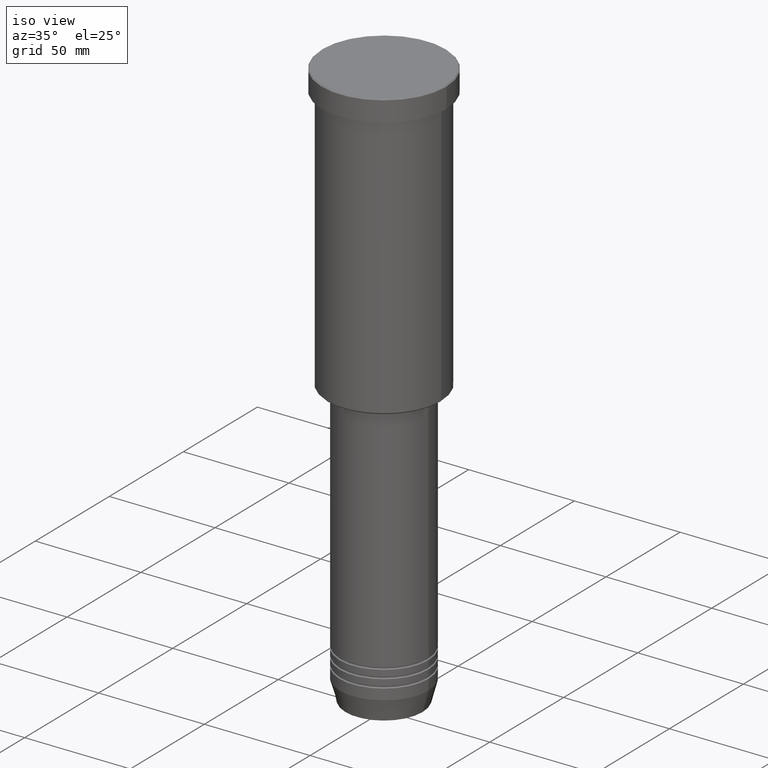
[diagram: clean part render]
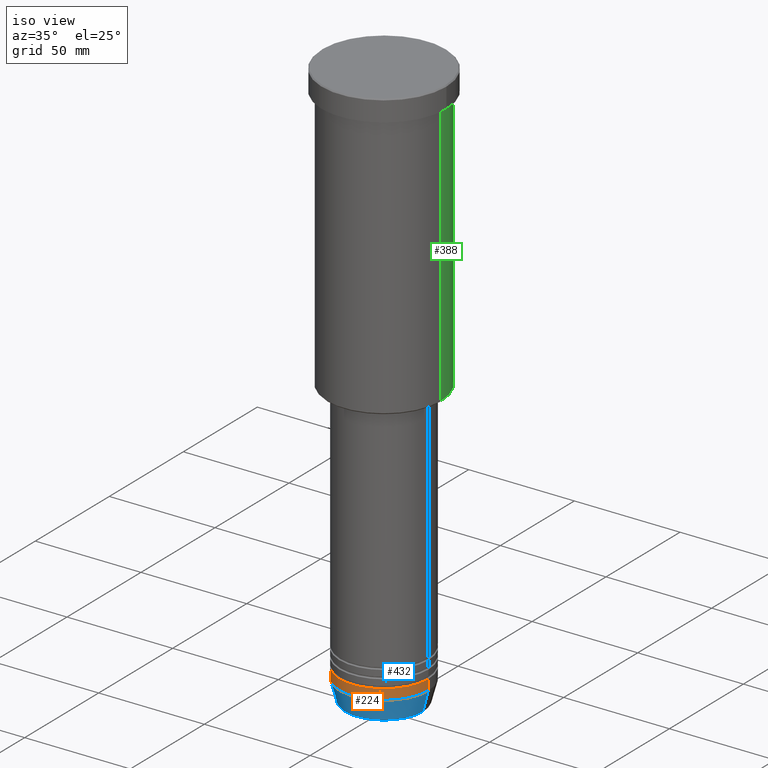
[diagram: same view with three faces highlighted in distinct colors, each labeled with its STEP entity id]
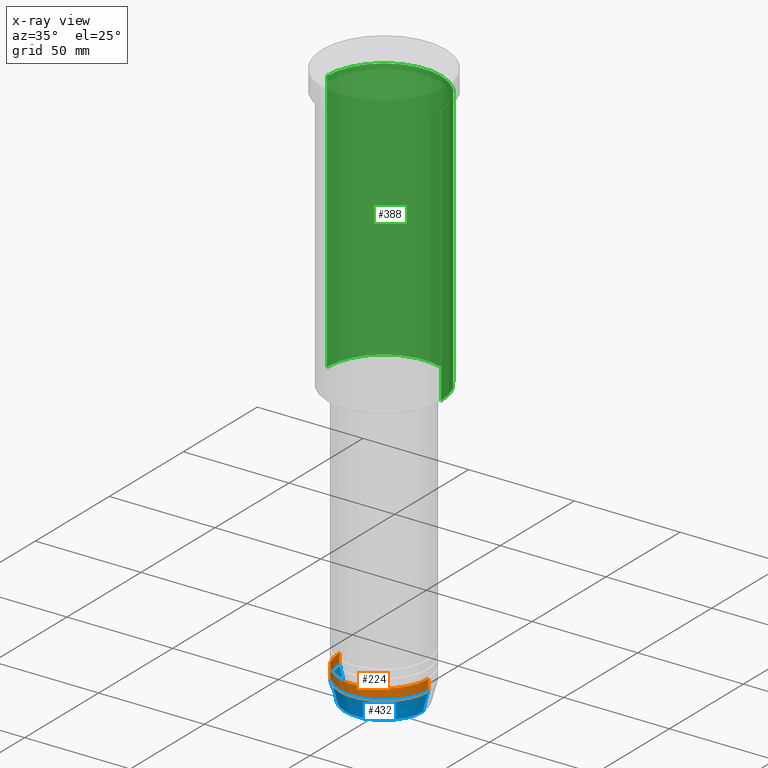
[diagram: x-ray of the same camera — body ghosted, the three highlighted faces saturated]
A machine part, iso view with three faces highlighted in distinct colors.
The next image is the same camera in x-ray (body ghosted, the three faces saturated) — at least one of them is partly hidden behind the body in this view.
Their STEP definitions:

[orange] entity #224 — the highlighted cylindrical surface (partial cylindrical patch) has radius 21 mm, axis along (-0, -0, 1).
#27 = VECTOR ( 'NONE', #535, 1000.000000000000000 ) ;
#34 = ORIENTED_EDGE ( 'NONE', *, *, #639, .T. ) ;
#72 = CYLINDRICAL_SURFACE ( 'NONE', #1182, 21.00000000000000000 ) ;
#73 = ORIENTED_EDGE ( 'NONE', *, *, #771, .T. ) ;
#89 = LINE ( 'NONE', #908, #334 ) ;
#120 = ORIENTED_EDGE ( 'NONE', *, *, #989, .F. ) ;
#148 = ORIENTED_EDGE ( 'NONE', *, *, #701, .F. ) ;
#154 = DIRECTION ( 'NONE',  ( -0.000000000000000000, -0.000000000000000000, 1.000000000000000000 ) ) ;
#199 = CIRCLE ( 'NONE', #1018, 21.00000000000000000 ) ;
#224 = ADVANCED_FACE ( 'NONE', ( #262 ), #72, .T. ) ;
#252 = DIRECTION ( 'NONE',  ( -0.000000000000000000, -0.000000000000000000, 1.000000000000000000 ) ) ;
#262 = FACE_OUTER_BOUND ( 'NONE', #597, .T. ) ;
#334 = VECTOR ( 'NONE', #252, 1000.000000000000000 ) ;
#447 = VERTEX_POINT ( 'NONE', #862 ) ;
#451 = CARTESIAN_POINT ( 'NONE',  ( 0.000000000000000000, 0.000000000000000000, 0.000000000000000000 ) ) ;
#497 = DIRECTION ( 'NONE',  ( 1.000000000000000000, 0.000000000000000000, 0.000000000000000000 ) ) ;
#528 = CARTESIAN_POINT ( 'NONE',  ( -21.00000000000000000, 2.571758278209441661E-15, 0.000000000000000000 ) ) ;
#535 = DIRECTION ( 'NONE',  ( -0.000000000000000000, -0.000000000000000000, 1.000000000000000000 ) ) ;
#597 = EDGE_LOOP ( 'NONE', ( #148, #34, #73, #120 ) ) ;
#623 = CARTESIAN_POINT ( 'NONE',  ( 0.000000000000000000, 0.000000000000000000, -261.0000000000000000 ) ) ;
#639 = EDGE_CURVE ( 'NONE', #774, #873, #1060, .T. ) ;
#644 = DIRECTION ( 'NONE',  ( -0.000000000000000000, -0.000000000000000000, 1.000000000000000000 ) ) ;
#684 = LINE ( 'NONE', #528, #27 ) ;
#701 = EDGE_CURVE ( 'NONE', #774, #833, #684, .T. ) ;
#710 = DIRECTION ( 'NONE',  ( -0.000000000000000000, -0.000000000000000000, 1.000000000000000000 ) ) ;
#771 = EDGE_CURVE ( 'NONE', #873, #447, #89, .T. ) ;
#774 = VERTEX_POINT ( 'NONE', #814 ) ;
#783 = CARTESIAN_POINT ( 'NONE',  ( 0.000000000000000000, 0.000000000000000000, -256.0000000000000000 ) ) ;
#814 = CARTESIAN_POINT ( 'NONE',  ( -21.00000000000000000, 2.571758278209441661E-15, -261.0000000000000000 ) ) ;
#833 = VERTEX_POINT ( 'NONE', #984 ) ;
#862 = CARTESIAN_POINT ( 'NONE',  ( 21.00000000000000000, 0.000000000000000000, -256.0000000000000000 ) ) ;
#873 = VERTEX_POINT ( 'NONE', #1118 ) ;
#908 = CARTESIAN_POINT ( 'NONE',  ( 21.00000000000000000, 0.000000000000000000, 0.000000000000000000 ) ) ;
#963 = DIRECTION ( 'NONE',  ( 1.000000000000000000, 0.000000000000000000, 0.000000000000000000 ) ) ;
#984 = CARTESIAN_POINT ( 'NONE',  ( -21.00000000000000000, 2.571758278209441661E-15, -256.0000000000000000 ) ) ;
#989 = EDGE_CURVE ( 'NONE', #833, #447, #199, .T. ) ;
#1018 = AXIS2_PLACEMENT_3D ( 'NONE', #783, #154, #963 ) ;
#1060 = CIRCLE ( 'NONE', #1111, 21.00000000000000000 ) ;
#1073 = DIRECTION ( 'NONE',  ( 1.000000000000000000, 0.000000000000000000, 0.000000000000000000 ) ) ;
#1111 = AXIS2_PLACEMENT_3D ( 'NONE', #623, #644, #497 ) ;
#1118 = CARTESIAN_POINT ( 'NONE',  ( 21.00000000000000000, 0.000000000000000000, -261.0000000000000000 ) ) ;
#1182 = AXIS2_PLACEMENT_3D ( 'NONE', #451, #710, #1073 ) ;

[blue] entity #432 — the highlighted conical surface has half-angle 15 deg.
#7 = CARTESIAN_POINT ( 'NONE',  ( -18.41980749484383750, 2.413767053578267458E-15, -270.6294095225512706 ) ) ;
#20 = CONICAL_SURFACE ( 'NONE', #479, 21.00000000000000000, 0.2617993877991499074 ) ;
#152 = LINE ( 'NONE', #1152, #525 ) ;
#165 = DIRECTION ( 'NONE',  ( -0.000000000000000000, -0.000000000000000000, 1.000000000000000000 ) ) ;
#182 = CARTESIAN_POINT ( 'NONE',  ( -21.00000000000000000, 2.571758278209441661E-15, -261.0000000000000000 ) ) ;
#257 = DIRECTION ( 'NONE',  ( -0.2588190451025211836, 3.169619151431770488E-17, 0.9659258262890680902 ) ) ;
#260 = ORIENTED_EDGE ( 'NONE', *, *, #613, .T. ) ;
#286 = CIRCLE ( 'NONE', #982, 18.41980749484383750 ) ;
#340 = VERTEX_POINT ( 'NONE', #7 ) ;
#408 = CARTESIAN_POINT ( 'NONE',  ( 0.000000000000000000, 0.000000000000000000, -261.0000000000000000 ) ) ;
#432 = ADVANCED_FACE ( 'NONE', ( #753 ), #20, .T. ) ;
#433 = CARTESIAN_POINT ( 'NONE',  ( 18.41980749484383750, 0.000000000000000000, -270.6294095225512706 ) ) ;
#479 = AXIS2_PLACEMENT_3D ( 'NONE', #408, #671, #843 ) ;
#497 = DIRECTION ( 'NONE',  ( 1.000000000000000000, 0.000000000000000000, 0.000000000000000000 ) ) ;
#523 = DIRECTION ( 'NONE',  ( 0.2588190451025211836, 0.000000000000000000, 0.9659258262890680902 ) ) ;
#525 = VECTOR ( 'NONE', #523, 1000.000000000000114 ) ;
#613 = EDGE_CURVE ( 'NONE', #635, #873, #152, .T. ) ;
#618 = EDGE_LOOP ( 'NONE', ( #1096, #980, #260, #845 ) ) ;
#623 = CARTESIAN_POINT ( 'NONE',  ( 0.000000000000000000, 0.000000000000000000, -261.0000000000000000 ) ) ;
#635 = VERTEX_POINT ( 'NONE', #433 ) ;
#639 = EDGE_CURVE ( 'NONE', #774, #873, #1060, .T. ) ;
#644 = DIRECTION ( 'NONE',  ( -0.000000000000000000, -0.000000000000000000, 1.000000000000000000 ) ) ;
#671 = DIRECTION ( 'NONE',  ( -0.000000000000000000, -0.000000000000000000, 1.000000000000000000 ) ) ;
#733 = VECTOR ( 'NONE', #257, 1000.000000000000114 ) ;
#753 = FACE_OUTER_BOUND ( 'NONE', #618, .T. ) ;
#763 = EDGE_CURVE ( 'NONE', #340, #774, #1082, .T. ) ;
#774 = VERTEX_POINT ( 'NONE', #814 ) ;
#814 = CARTESIAN_POINT ( 'NONE',  ( -21.00000000000000000, 2.571758278209441661E-15, -261.0000000000000000 ) ) ;
#834 = EDGE_CURVE ( 'NONE', #340, #635, #286, .T. ) ;
#843 = DIRECTION ( 'NONE',  ( 1.000000000000000000, 0.000000000000000000, 0.000000000000000000 ) ) ;
#845 = ORIENTED_EDGE ( 'NONE', *, *, #639, .F. ) ;
#873 = VERTEX_POINT ( 'NONE', #1118 ) ;
#980 = ORIENTED_EDGE ( 'NONE', *, *, #834, .T. ) ;
#982 = AXIS2_PLACEMENT_3D ( 'NONE', #1070, #165, #1021 ) ;
#1021 = DIRECTION ( 'NONE',  ( 1.000000000000000000, 0.000000000000000000, 0.000000000000000000 ) ) ;
#1060 = CIRCLE ( 'NONE', #1111, 21.00000000000000000 ) ;
#1070 = CARTESIAN_POINT ( 'NONE',  ( 0.000000000000000000, 0.000000000000000000, -270.6294095225512706 ) ) ;
#1082 = LINE ( 'NONE', #182, #733 ) ;
#1096 = ORIENTED_EDGE ( 'NONE', *, *, #763, .F. ) ;
#1111 = AXIS2_PLACEMENT_3D ( 'NONE', #623, #644, #497 ) ;
#1118 = CARTESIAN_POINT ( 'NONE',  ( 21.00000000000000000, 0.000000000000000000, -261.0000000000000000 ) ) ;
#1152 = CARTESIAN_POINT ( 'NONE',  ( 21.00000000000000000, 0.000000000000000000, -261.0000000000000000 ) ) ;

[green] entity #388 — the highlighted cylindrical surface (partial cylindrical patch) has radius 27 mm, axis along (-0, -0, 1).
#74 = ORIENTED_EDGE ( 'NONE', *, *, #794, .T. ) ;
#95 = CARTESIAN_POINT ( 'NONE',  ( 0.000000000000000000, 0.000000000000000000, 0.000000000000000000 ) ) ;
#156 = VECTOR ( 'NONE', #732, 1000.000000000000000 ) ;
#157 = CARTESIAN_POINT ( 'NONE',  ( -27.00000000000000355, 3.306546357697854128E-15, -135.4999999999999432 ) ) ;
#189 = LINE ( 'NONE', #826, #156 ) ;
#194 = CARTESIAN_POINT ( 'NONE',  ( 27.00000000000000355, 0.000000000000000000, -10.99999999999999289 ) ) ;
#211 = CARTESIAN_POINT ( 'NONE',  ( 27.00000000000000355, 0.000000000000000000, -135.4999999999999432 ) ) ;
#237 = VERTEX_POINT ( 'NONE', #801 ) ;
#247 = EDGE_CURVE ( 'NONE', #1160, #237, #189, .T. ) ;
#343 = AXIS2_PLACEMENT_3D ( 'NONE', #772, #488, #936 ) ;
#388 = ADVANCED_FACE ( 'NONE', ( #911 ), #793, .T. ) ;
#398 = EDGE_CURVE ( 'NONE', #693, #864, #425, .T. ) ;
#425 = LINE ( 'NONE', #903, #669 ) ;
#442 = EDGE_LOOP ( 'NONE', ( #74, #1114, #759, #558 ) ) ;
#454 = EDGE_CURVE ( 'NONE', #864, #237, #866, .T. ) ;
#462 = DIRECTION ( 'NONE',  ( -0.000000000000000000, -0.000000000000000000, 1.000000000000000000 ) ) ;
#466 = AXIS2_PLACEMENT_3D ( 'NONE', #619, #730, #823 ) ;
#488 = DIRECTION ( 'NONE',  ( -0.000000000000000000, -0.000000000000000000, 1.000000000000000000 ) ) ;
#558 = ORIENTED_EDGE ( 'NONE', *, *, #398, .F. ) ;
#608 = DIRECTION ( 'NONE',  ( -0.000000000000000000, -0.000000000000000000, 1.000000000000000000 ) ) ;
#619 = CARTESIAN_POINT ( 'NONE',  ( 0.000000000000000000, 0.000000000000000000, -135.4999999999999432 ) ) ;
#645 = DIRECTION ( 'NONE',  ( 1.000000000000000000, 0.000000000000000000, 0.000000000000000000 ) ) ;
#669 = VECTOR ( 'NONE', #608, 1000.000000000000000 ) ;
#693 = VERTEX_POINT ( 'NONE', #211 ) ;
#730 = DIRECTION ( 'NONE',  ( -0.000000000000000000, -0.000000000000000000, 1.000000000000000000 ) ) ;
#732 = DIRECTION ( 'NONE',  ( -0.000000000000000000, -0.000000000000000000, 1.000000000000000000 ) ) ;
#759 = ORIENTED_EDGE ( 'NONE', *, *, #454, .F. ) ;
#772 = CARTESIAN_POINT ( 'NONE',  ( 0.000000000000000000, 0.000000000000000000, -10.99999999999999289 ) ) ;
#793 = CYLINDRICAL_SURFACE ( 'NONE', #1052, 27.00000000000000355 ) ;
#794 = EDGE_CURVE ( 'NONE', #693, #1160, #815, .T. ) ;
#801 = CARTESIAN_POINT ( 'NONE',  ( -27.00000000000000355, 3.306546357697854128E-15, -10.99999999999999289 ) ) ;
#815 = CIRCLE ( 'NONE', #466, 27.00000000000000355 ) ;
#823 = DIRECTION ( 'NONE',  ( -1.000000000000000000, 0.000000000000000000, 0.000000000000000000 ) ) ;
#826 = CARTESIAN_POINT ( 'NONE',  ( -27.00000000000000355, 3.306546357697854128E-15, 0.000000000000000000 ) ) ;
#864 = VERTEX_POINT ( 'NONE', #194 ) ;
#866 = CIRCLE ( 'NONE', #343, 27.00000000000000355 ) ;
#903 = CARTESIAN_POINT ( 'NONE',  ( 27.00000000000000355, 0.000000000000000000, 0.000000000000000000 ) ) ;
#911 = FACE_OUTER_BOUND ( 'NONE', #442, .T. ) ;
#936 = DIRECTION ( 'NONE',  ( 1.000000000000000000, 0.000000000000000000, 0.000000000000000000 ) ) ;
#1052 = AXIS2_PLACEMENT_3D ( 'NONE', #95, #462, #645 ) ;
#1114 = ORIENTED_EDGE ( 'NONE', *, *, #247, .T. ) ;
#1160 = VERTEX_POINT ( 'NONE', #157 ) ;